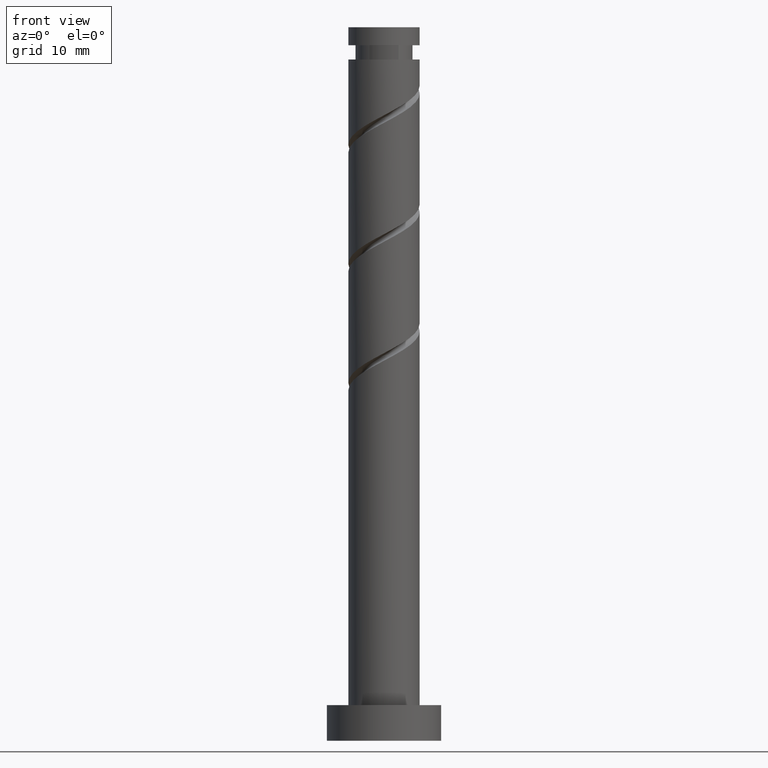
[diagram: clean part render]
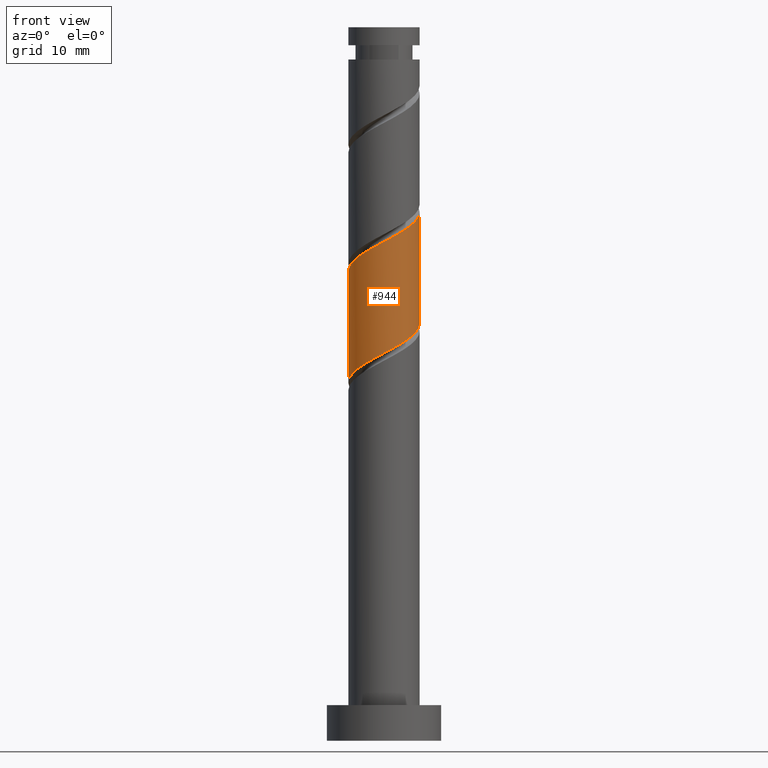
[diagram: same view with one face highlighted and labeled with its STEP entity id]
A machine part, front view. The second image highlights one B-rep face of the part: STEP entity #944.
In plain terms, the highlighted cylindrical surface (edge-blend (fillet) strip) has radius 5 mm, axis along (-0, -0, -1).
Its self-contained STEP definition (entity closure, byte-faithful):
#18 = EDGE_CURVE ( 'NONE', #821, #337, #487, .T. ) ;
#24 = CARTESIAN_POINT ( 'NONE',  ( -2.610881054719550676, -4.264188096004503770, 52.87930744372000902 ) ) ;
#37 = CARTESIAN_POINT ( 'NONE',  ( -3.911863884632763355, -3.114052174917091520, 51.95338151779407099 ) ) ;
#59 = CARTESIAN_POINT ( 'NONE',  ( 5.000000000000006217, -3.846783885825127852E-15, 74.10771181465716495 ) ) ;
#71 = DIRECTION ( 'NONE',  ( -0.000000000000000000, -0.000000000000000000, -1.000000000000000000 ) ) ;
#89 = CARTESIAN_POINT ( 'NONE',  ( -4.329970070769387114, -2.651158103430556690, 67.23115929557185666 ) ) ;
#96 = CARTESIAN_POINT ( 'NONE',  ( -3.162091449211502869, -3.972210690530860067, 68.15708522149776627 ) ) ;
#132 = CARTESIAN_POINT ( 'NONE',  ( 4.998335745014871989, -0.1289952716443893421, 58.43486299927554484 ) ) ;
#142 = CARTESIAN_POINT ( 'NONE',  ( -3.362772466861001064, -3.803819322636873945, 52.41634448075702579 ) ) ;
#147 = CARTESIAN_POINT ( 'NONE',  ( -1.858989642578099843, -4.724556869372135814, 53.34227040668296382 ) ) ;
#179 = AXIS2_PLACEMENT_3D ( 'NONE', #576, #1486, #324 ) ;
#200 = CARTESIAN_POINT ( 'NONE',  ( -4.999999999999997335, -2.427582063870242635E-15, 50.16942159130135082 ) ) ;
#202 = CARTESIAN_POINT ( 'NONE',  ( -4.975590398240157697, -1.010336722130056542, 66.30523336964591863 ) ) ;
#210 = CARTESIAN_POINT ( 'NONE',  ( 0.9949874371066199652, -4.900000000000006573, 70.47190003631260424 ) ) ;
#240 = ORIENTED_EDGE ( 'NONE', *, *, #18, .T. ) ;
#251 = VECTOR ( 'NONE', #71, 1000.000000000000000 ) ;
#258 = CARTESIAN_POINT ( 'NONE',  ( 3.162091449211497540, -3.972210690530855182, 56.12004818446074950 ) ) ;
#263 = CARTESIAN_POINT ( 'NONE',  ( -4.999999999999998224, -2.427582063870242635E-15, 50.16942159130134371 ) ) ;
#306 = CARTESIAN_POINT ( 'NONE',  ( 5.000000000000005329, -0.8152718591022919403, 73.67779230229155019 ) ) ;
#307 = CARTESIAN_POINT ( 'NONE',  ( -5.000000000000006217, 3.727272153449978178E-15, 65.77437848132383635 ) ) ;
#324 = DIRECTION ( 'NONE',  ( -1.000000000000000000, 0.000000000000000000, 0.000000000000000000 ) ) ;
#334 = VECTOR ( 'NONE', #1099, 1000.000000000000000 ) ;
#337 = VERTEX_POINT ( 'NONE', #200 ) ;
#354 = CARTESIAN_POINT ( 'NONE',  ( 3.746030759990437886, -3.311684396980705269, 56.58301114742370430 ) ) ;
#363 = CARTESIAN_POINT ( 'NONE',  ( 4.999999999999999112, -0.06450837166010622847, 58.46873755070230771 ) ) ;
#376 = CARTESIAN_POINT ( 'NONE',  ( 4.999999999999998224, 4.481689964068140371E-16, 58.50275492463467941 ) ) ;
#448 = VERTEX_POINT ( 'NONE', #1170 ) ;
#467 = ORIENTED_EDGE ( 'NONE', *, *, #1319, .F. ) ;
#487 = LINE ( 'NONE', #627, #334 ) ;
#492 = CARTESIAN_POINT ( 'NONE',  ( -4.999999999999999112, -0.8152718591022831696, 50.59934110366697269 ) ) ;
#534 = CARTESIAN_POINT ( 'NONE',  ( 5.000000000000000000, 6.123233995736766282E-16, 100.0000000000000000 ) ) ;
#555 = CARTESIAN_POINT ( 'NONE',  ( -3.746030759990444992, -3.311684396980707046, 67.69412225853481857 ) ) ;
#563 = CARTESIAN_POINT ( 'NONE',  ( -0.7409163498720054974, -4.944799587697405130, 69.54597411038666621 ) ) ;
#567 = FACE_OUTER_BOUND ( 'NONE', #1375, .T. ) ;
#576 = CARTESIAN_POINT ( 'NONE',  ( 0.000000000000000000, 0.000000000000000000, 100.0000000000000000 ) ) ;
#580 = EDGE_CURVE ( 'NONE', #448, #337, #1424, .T. ) ;
#615 = VERTEX_POINT ( 'NONE', #59 ) ;
#627 = CARTESIAN_POINT ( 'NONE',  ( -5.000000000000000000, 0.000000000000000000, 100.0000000000000000 ) ) ;
#669 = CYLINDRICAL_SURFACE ( 'NONE', #179, 5.000000000000000000 ) ;
#681 = CARTESIAN_POINT ( 'NONE',  ( -2.387454690295326643, -4.393183367648898496, 68.62004818446075660 ) ) ;
#714 = CARTESIAN_POINT ( 'NONE',  ( -0.9949874371066205203, -4.899999999999998579, 53.80523336964591863 ) ) ;
#723 = CARTESIAN_POINT ( 'NONE',  ( 4.329970070769377344, -2.651158103430555801, 57.04597411038665200 ) ) ;
#790 = CARTESIAN_POINT ( 'NONE',  ( -4.998335745014879983, -0.1289952716443864833, 65.84227040668297093 ) ) ;
#821 = VERTEX_POINT ( 'NONE', #1356 ) ;
#842 = CARTESIAN_POINT ( 'NONE',  ( -4.460955302404522094, -2.424285027197310427, 51.49041855483111618 ) ) ;
#848 = CARTESIAN_POINT ( 'NONE',  ( 2.387454690295322646, -4.393183367648893167, 55.65708522149778048 ) ) ;
#944 = ADVANCED_FACE ( 'NONE', ( #567 ), #669, .T. ) ;
#966 = CARTESIAN_POINT ( 'NONE',  ( 4.975590398240150591, -1.010336722130056542, 57.97190003631259003 ) ) ;
#990 = CARTESIAN_POINT ( 'NONE',  ( 4.741018197097065290, -1.588315603019301303, 73.24967781409034728 ) ) ;
#1021 = CARTESIAN_POINT ( 'NONE',  ( 1.858989642578098733, -4.724556869372143808, 70.93486299927552352 ) ) ;
#1039 = CARTESIAN_POINT ( 'NONE',  ( 0.1309852316351392543, -5.075443130627872002, 70.00893707334962812 ) ) ;
#1041 = ORIENTED_EDGE ( 'NONE', *, *, #580, .F. ) ;
#1069 = CARTESIAN_POINT ( 'NONE',  ( 0.7409163498720023888, -4.944799587697395360, 54.73115929557185666 ) ) ;
#1086 =( BOUNDED_CURVE ( )  B_SPLINE_CURVE ( 2, ( #307, #1361, #790, #202, #1140, #89, #555, #96, #681, #1149, #563, #1039, #210, #1021, #1343, #1116, #1239, #1226, #990, #306, #1435 ),
 .UNSPECIFIED., .F., .T. ) 
 B_SPLINE_CURVE_WITH_KNOTS ( ( 3, 2, 2, 2, 2, 2, 2, 2, 2, 2, 3 ),
 ( 0.3045248053855290626, 0.3055555555555555802, 0.3194444444444444198, 0.3333333333333333703, 0.3472222222222222099, 0.3611111111111111605, 0.3750000000000000000, 0.3888888888888888395, 0.4027777777777777901, 0.4166666666666666297, 0.4295248053855290071 ),
 .UNSPECIFIED. ) 
 CURVE ( )  GEOMETRIC_REPRESENTATION_ITEM ( )  RATIONAL_B_SPLINE_CURVE ( ( 0.9071930855141261407, 0.9080659294509737522, 0.9090909090909138346, 0.8952797754656482976, 0.9090909090909138346, 0.8952797754656482976, 0.9090909090909138346, 0.8952797754656482976, 0.9090909090909138346, 0.8952797754656482976, 0.9090909090909138346, 0.8952797754656482976, 0.9090909090909138346, 0.8952797754656482976, 0.9090909090909138346, 0.8952797754656482976, 0.9090909090909138346, 0.8952797754656482976, 0.9090909090909138346, 0.8963047551055884909, 0.9071930855141259187 ) ) 
 REPRESENTATION_ITEM ( '' )  );
#1088 = CARTESIAN_POINT ( 'NONE',  ( -4.741018197097059073, -1.588315603019294420, 51.02745559186814717 ) ) ;
#1099 = DIRECTION ( 'NONE',  ( -0.000000000000000000, -0.000000000000000000, -1.000000000000000000 ) ) ;
#1116 = CARTESIAN_POINT ( 'NONE',  ( 3.362772466861005949, -3.803819322636881051, 71.86078892520147576 ) ) ;
#1140 = CARTESIAN_POINT ( 'NONE',  ( -4.652780234504771961, -1.830747412780306282, 66.76819633260889475 ) ) ;
#1149 = CARTESIAN_POINT ( 'NONE',  ( -1.612817931379149750, -4.814156044766936482, 69.08301114742370430 ) ) ;
#1170 = CARTESIAN_POINT ( 'NONE',  ( 4.999999999999998224, 4.481689964068140371E-16, 58.50275492463467941 ) ) ;
#1226 = CARTESIAN_POINT ( 'NONE',  ( 4.460955302404528311, -2.424285027197314868, 72.78671485112741379 ) ) ;
#1239 = CARTESIAN_POINT ( 'NONE',  ( 3.911863884632767796, -3.114052174917097293, 72.32375188816440925 ) ) ;
#1303 = CARTESIAN_POINT ( 'NONE',  ( -0.1309852316351434176, -5.075443130627863120, 54.26819633260888764 ) ) ;
#1310 = CARTESIAN_POINT ( 'NONE',  ( 1.612817931379145753, -4.814156044766930265, 55.19412225853482568 ) ) ;
#1319 = EDGE_CURVE ( 'NONE', #615, #448, #1345, .T. ) ;
#1343 = CARTESIAN_POINT ( 'NONE',  ( 2.610881054719553340, -4.264188096004511763, 71.39782596223851385 ) ) ;
#1345 = LINE ( 'NONE', #534, #251 ) ;
#1356 = CARTESIAN_POINT ( 'NONE',  ( -5.000000000000006217, 3.727272153449978178E-15, 65.77437848132383635 ) ) ;
#1359 = ORIENTED_EDGE ( 'NONE', *, *, #1461, .F. ) ;
#1361 = CARTESIAN_POINT ( 'NONE',  ( -5.000000000000007105, -0.06450837166010313373, 65.80839585525619384 ) ) ;
#1375 = EDGE_LOOP ( 'NONE', ( #467, #1359, #240, #1041 ) ) ;
#1400 = CARTESIAN_POINT ( 'NONE',  ( 4.652780234504764856, -1.830747412780304062, 57.50893707334963523 ) ) ;
#1424 =( BOUNDED_CURVE ( )  B_SPLINE_CURVE ( 2, ( #376, #363, #132, #966, #1400, #723, #354, #258, #848, #1310, #1069, #1303, #714, #147, #24, #142, #37, #842, #1088, #492, #263 ),
 .UNSPECIFIED., .F., .T. ) 
 B_SPLINE_CURVE_WITH_KNOTS ( ( 3, 2, 2, 2, 2, 2, 2, 2, 2, 2, 3 ),
 ( 0.8045248053855290626, 0.8055555555555555802, 0.8194444444444444198, 0.8333333333333333703, 0.8472222222222222099, 0.8611111111111111605, 0.8750000000000000000, 0.8888888888888888395, 0.9027777777777777901, 0.9166666666666666297, 0.9295248053855290626 ),
 .UNSPECIFIED. ) 
 CURVE ( )  GEOMETRIC_REPRESENTATION_ITEM ( )  RATIONAL_B_SPLINE_CURVE ( ( 0.9071930855141199235, 0.9080659294509675350, 0.9090909090909076173, 0.8952797754656421914, 0.9090909090909076173, 0.8952797754656421914, 0.9090909090909076173, 0.8952797754656421914, 0.9090909090909076173, 0.8952797754656421914, 0.9090909090909076173, 0.8952797754656421914, 0.9090909090909076173, 0.8952797754656421914, 0.9090909090909076173, 0.8952797754656421914, 0.9090909090909076173, 0.8952797754656421914, 0.9090909090909076173, 0.8963047551055822737, 0.9071930855141199235 ) ) 
 REPRESENTATION_ITEM ( '' )  );
#1435 = CARTESIAN_POINT ( 'NONE',  ( 5.000000000000006217, -3.846783885825127852E-15, 74.10771181465717916 ) ) ;
#1461 = EDGE_CURVE ( 'NONE', #821, #615, #1086, .T. ) ;
#1486 = DIRECTION ( 'NONE',  ( -0.000000000000000000, -0.000000000000000000, -1.000000000000000000 ) ) ;